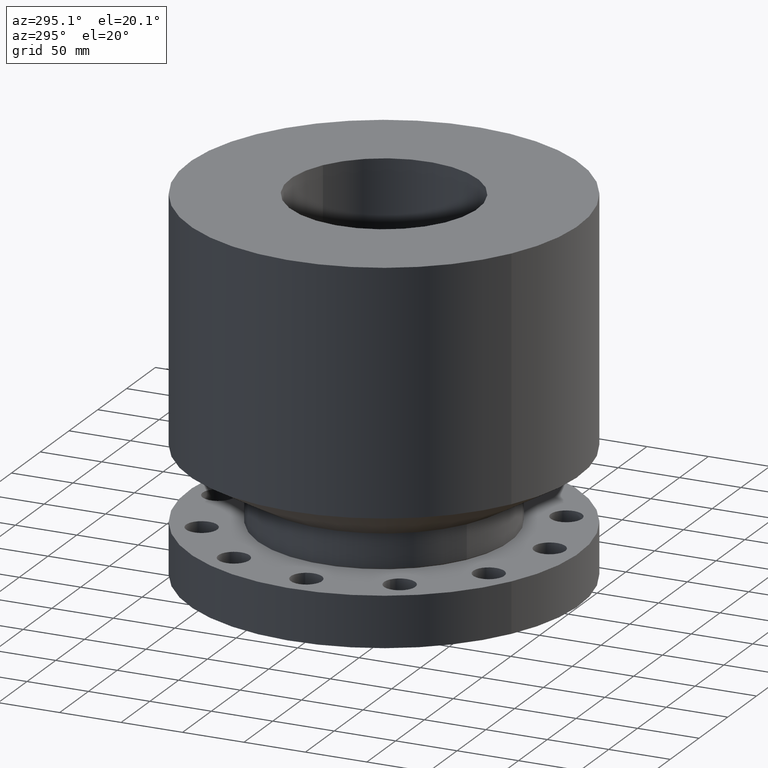
[diagram: clean part render]
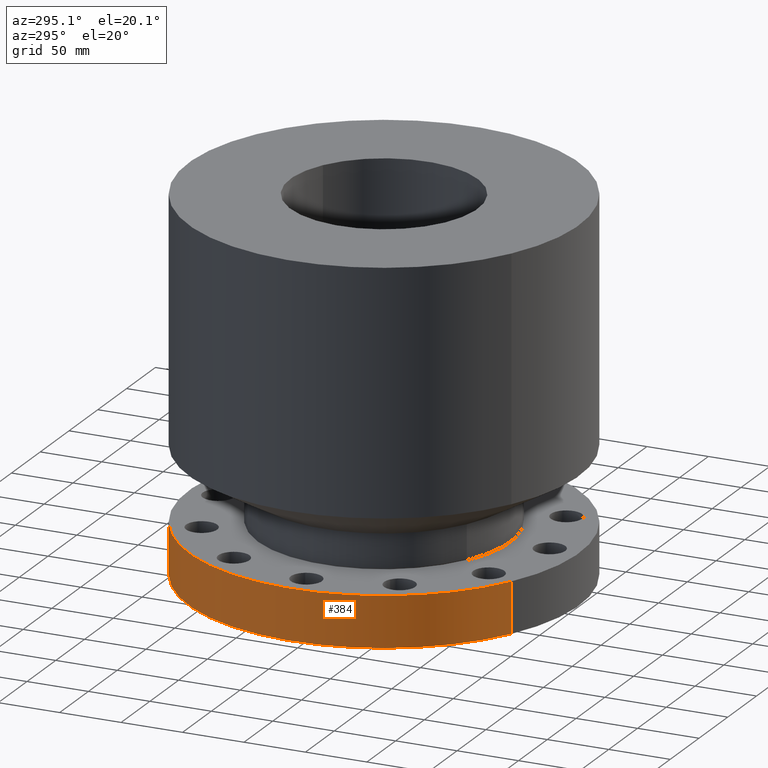
[diagram: same view with one face highlighted and labeled with its STEP entity id]
A machine part, auxiliary view. The second image highlights one B-rep face of the part: STEP entity #384.
In plain terms, the highlighted cylindrical surface (partial cylindrical patch) has radius 158.75 mm, axis along (0, 0, -1).
Its self-contained STEP definition (entity closure, byte-faithful):
#91=AXIS2_PLACEMENT_3D('Circle Axis2P3D',#89,#90,$) ;
#357=AXIS2_PLACEMENT_3D('Cylinder Axis2P3D',#354,#355,#356) ;
#361=AXIS2_PLACEMENT_3D('Circle Axis2P3D',#359,#360,$) ;
#84=CARTESIAN_POINT('Vertex',(2.99640961629,5.48489101184,1.62000000001)) ;
#86=CARTESIAN_POINT('Vertex',(-2.99640961629,-5.48489101184,1.62000000001)) ;
#89=CARTESIAN_POINT('Axis2P3D Location',(0.,0.,1.62000000001)) ;
#354=CARTESIAN_POINT('Axis2P3D Location',(0.,0.,5.75000000002)) ;
#359=CARTESIAN_POINT('Axis2P3D Location',(0.,0.,1.1189649382E-015)) ;
#363=CARTESIAN_POINT('Vertex',(-2.99640961629,-5.48489101184,1.1189649382E-015)) ;
#365=CARTESIAN_POINT('Vertex',(2.99640961629,5.48489101184,1.1189649382E-015)) ;
#368=CARTESIAN_POINT('Line Origine',(-2.99640961629,-5.48489101184,7.87719854479)) ;
#373=CARTESIAN_POINT('Line Origine',(2.99640961629,5.48489101184,7.87719854479)) ;
#90=DIRECTION('Axis2P3D Direction',(0.,0.,-0.0393700787402)) ;
#355=DIRECTION('Axis2P3D Direction',(0.,0.,-0.0393700787402)) ;
#356=DIRECTION('Axis2P3D XDirection',(-0.0188750212049,-0.0345504945626,0.)) ;
#360=DIRECTION('Axis2P3D Direction',(0.,0.,-0.0393700787402)) ;
#369=DIRECTION('Vector Direction',(0.,0.,-0.0393700787402)) ;
#374=DIRECTION('Vector Direction',(0.,0.,-0.0393700787402)) ;
#370=VECTOR('Line Direction',#369,0.0393700787402) ;
#375=VECTOR('Line Direction',#374,0.0393700787402) ;
#379=ORIENTED_EDGE('',*,*,#367,.F.) ;
#380=ORIENTED_EDGE('',*,*,#372,.T.) ;
#381=ORIENTED_EDGE('',*,*,#93,.T.) ;
#382=ORIENTED_EDGE('',*,*,#377,.F.) ;
#384=ADVANCED_FACE('PartBody',(#383),#358,.T.) ;
#92=CIRCLE('generated circle',#91,6.25000000002) ;
#362=CIRCLE('generated circle',#361,6.25000000003) ;
#358=CYLINDRICAL_SURFACE('generated cylinder',#357,6.25000000003) ;
#93=EDGE_CURVE('',#87,#85,#92,.T.) ;
#367=EDGE_CURVE('',#364,#366,#362,.T.) ;
#372=EDGE_CURVE('',#364,#87,#371,.F.) ;
#377=EDGE_CURVE('',#366,#85,#376,.F.) ;
#378=EDGE_LOOP('',(#379,#380,#381,#382)) ;
#383=FACE_OUTER_BOUND('',#378,.T.) ;
#371=LINE('Line',#368,#370) ;
#376=LINE('Line',#373,#375) ;
#85=VERTEX_POINT('',#84) ;
#87=VERTEX_POINT('',#86) ;
#364=VERTEX_POINT('',#363) ;
#366=VERTEX_POINT('',#365) ;